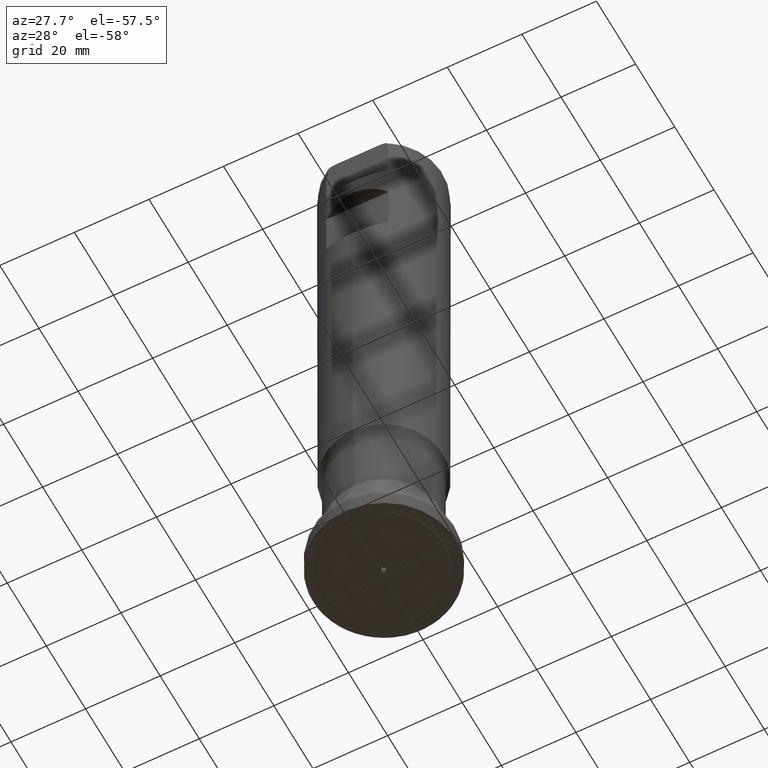
[diagram: clean part render]
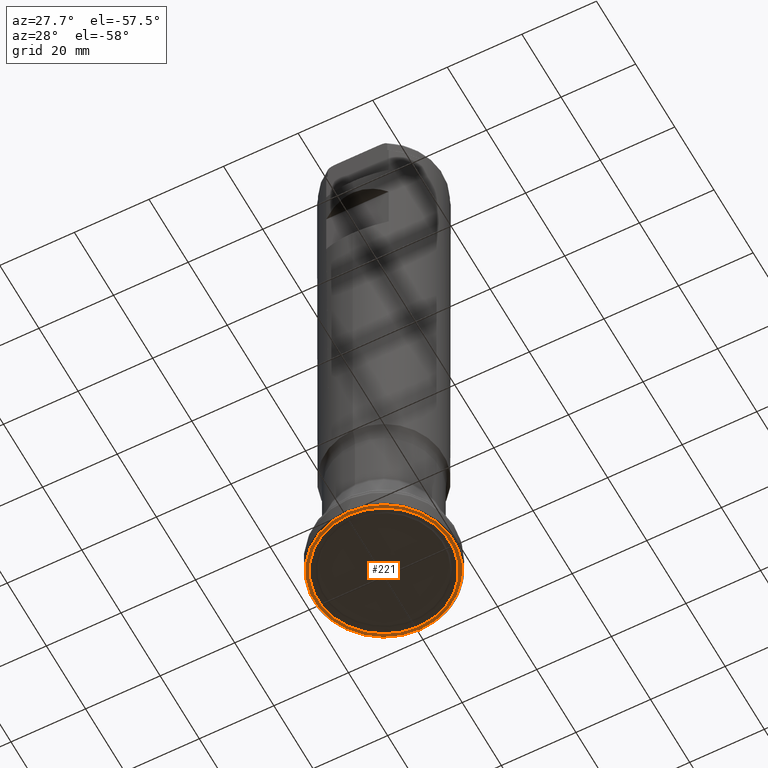
[diagram: same view with one face highlighted and labeled with its STEP entity id]
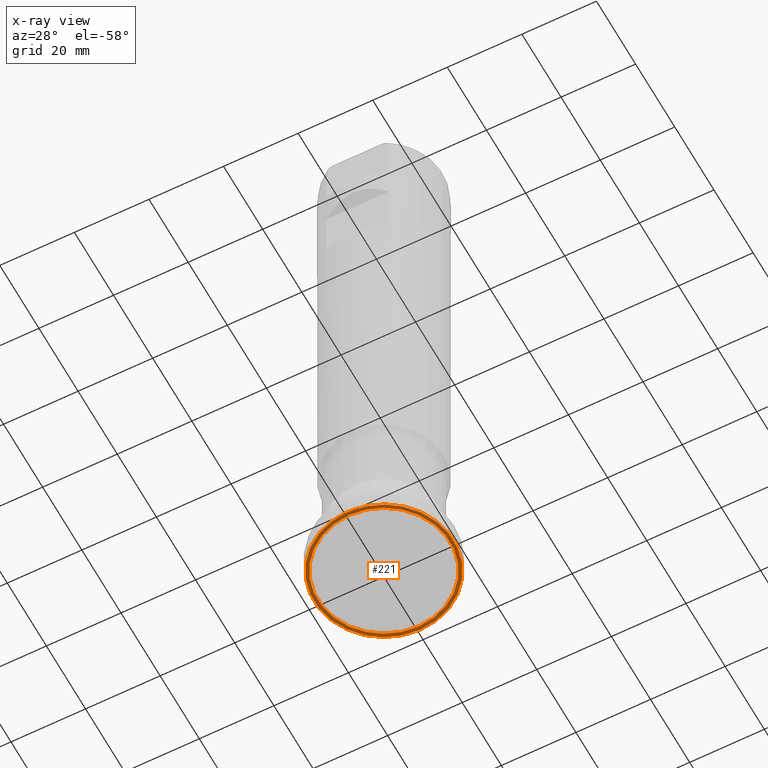
[diagram: x-ray of the same camera — body ghosted, the highlighted face saturated]
A machine part, auxiliary view. The second image highlights one B-rep face of the part: STEP entity #221.
The next image is the same camera in x-ray: the body ghosted, the highlighted face saturated — about 0% of this face is hidden behind the body in this view.
In plain terms, the highlighted face is a SurfaceOfRevolution surface.
Its self-contained STEP definition (entity closure, byte-faithful):
#112=SURFACE_OF_REVOLUTION('',#473,#133);
#133=AXIS1_PLACEMENT('',#1524,#1027);
#221=ADVANCED_FACE('',(#335,#336),#112,.F.);
#271=CIRCLE('',#869,17.7343965442564);
#272=CIRCLE('',#870,18.6589525400117);
#335=FACE_BOUND('',#425,.T.);
#336=FACE_BOUND('',#426,.T.);
#425=EDGE_LOOP('',(#602));
#426=EDGE_LOOP('',(#603));
#473=LINE('',#1523,#492);
#492=VECTOR('',#1026,0.937230343186222);
#602=ORIENTED_EDGE('',*,*,#747,.T.);
#603=ORIENTED_EDGE('',*,*,#748,.F.);
#679=VERTEX_POINT('',#1512);
#680=VERTEX_POINT('',#1522);
#747=EDGE_CURVE('',#679,#679,#271,.T.);
#748=EDGE_CURVE('',#680,#680,#272,.T.);
#869=AXIS2_PLACEMENT_3D('',#1511,#1021,#1022);
#870=AXIS2_PLACEMENT_3D('',#1521,#1024,#1025);
#1021=DIRECTION('',(0.,1.17145536458252E-15,1.));
#1022=DIRECTION('',(0.,-1.,1.17146230746908E-15));
#1024=DIRECTION('',(0.,1.17145536458252E-15,1.));
#1025=DIRECTION('',(0.,-1.,1.17145536458252E-15));
#1026=DIRECTION('',(-0.999978972180027,0.00112610806769993,0.00638647621126878));
#1027=DIRECTION('',(0.,1.17145536458252E-15,1.));
#1511=CARTESIAN_POINT('',(0.,7.01185604917375E-18,0.0059855938699573));
#1512=CARTESIAN_POINT('',(0.,-17.7343965442564,0.00598559386997807));
#1521=CARTESIAN_POINT('',(0.,5.59635367582107E-30,4.77726582251425E-15));
#1522=CARTESIAN_POINT('',(0.,-18.6589525400117,2.66353958730016E-14));
#1523=CARTESIAN_POINT('',(18.4162023742792,-2.99999999999999,8.29163191626181E-15));
#1524=CARTESIAN_POINT('',(0.,0.,0.));